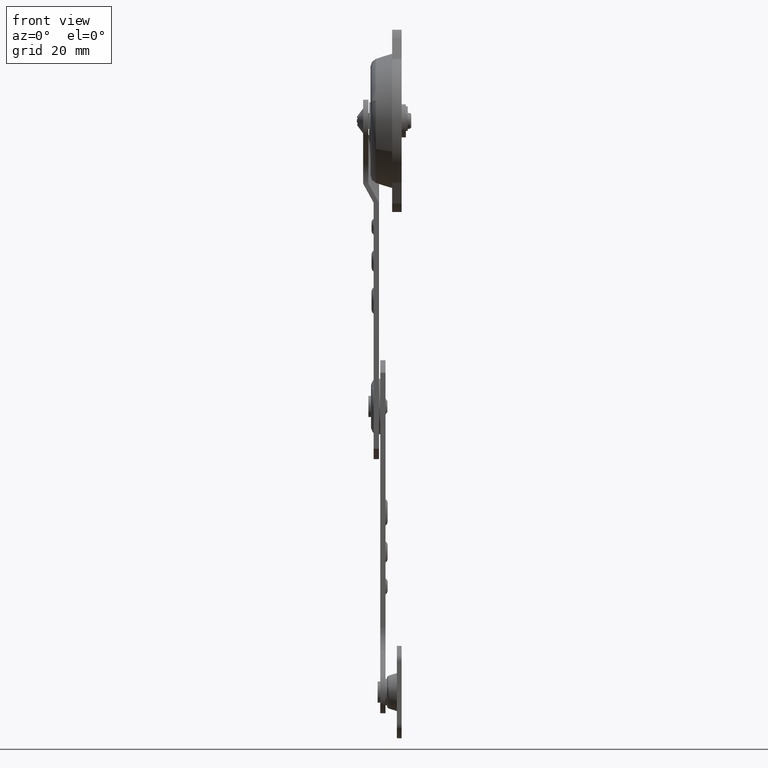
[diagram: clean part render]
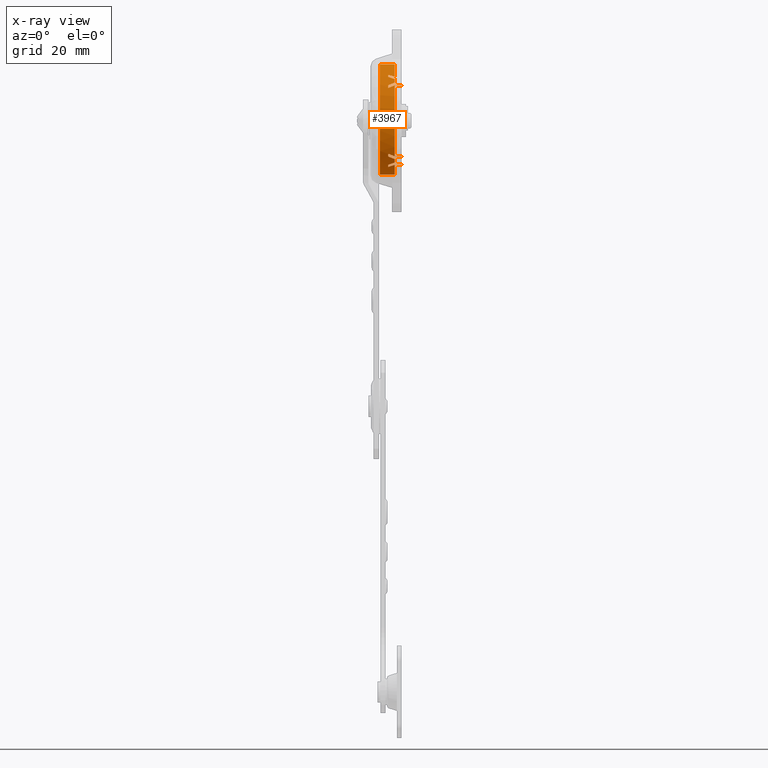
[diagram: x-ray — body ghosted, one internal face saturated and labeled with its STEP entity id]
A machine part, front view, then the same camera in x-ray: the body is ghosted and one INTERNAL B-rep face — a face not visible from any outside direction — is saturated and labeled: STEP entity #3967.
In plain terms, the highlighted face is a freeform B-spline surface patch.
Its self-contained STEP definition (entity closure, byte-faithful):
#3383=CARTESIAN_POINT('',(8.807505125112238,-26.898091209157659,87.742252403829752));
#3384=CARTESIAN_POINT('',(8.807505125112261,-47.155838805327903,94.640343612987408));
#3385=CARTESIAN_POINT('',(8.807505125112330,-40.257747596170248,114.898091209157700));
#3386=CARTESIAN_POINT('',(8.807505125112400,-33.359656387012592,135.155838805327900));
#3387=CARTESIAN_POINT('',(8.807505125112376,-13.101908790842341,128.257747596170300));
#3388=CARTESIAN_POINT('',(0.087312367287628,-26.898091209157659,87.742252403829781));
#3389=CARTESIAN_POINT('',(0.087312367287652,-47.155838805327903,94.640343612987451));
#3390=CARTESIAN_POINT('',(0.087312367287721,-40.257747596170248,114.898091209157700));
#3391=CARTESIAN_POINT('',(0.087312367287791,-33.359656387012592,135.155838805327930));
#3392=CARTESIAN_POINT('',(0.087312367287768,-13.101908790842341,128.257747596170300));
#3400=(BOUNDED_SURFACE()B_SPLINE_SURFACE(2,1,((#3383,#3388),(#3384,#3389),(#3385,#3390),(#3386,#3391),(#3387,#3392)),.UNSPECIFIED.,.F.,.F.,.U.)B_SPLINE_SURFACE_WITH_KNOTS((3,2,3),(2,2),(0.0,35.456680939136923,70.913361878273847),(0.0,8.720192757824611),.UNSPECIFIED.)GEOMETRIC_REPRESENTATION_ITEM()RATIONAL_B_SPLINE_SURFACE(((1.0,1.0),(0.707106781186548,0.707106781186548),(1.0,1.0),(0.707106781186548,0.707106781186548),(1.0,1.0)))REPRESENTATION_ITEM('')SURFACE());
#3401=CARTESIAN_POINT('',(0.299999999160109,-26.898091209278238,87.742252403870822));
#3402=VERTEX_POINT('',#3401);
#3403=CARTESIAN_POINT('',(0.299999995527323,-41.399999999999999,107.999999999999900));
#3404=VERTEX_POINT('',#3403);
#3405=CARTESIAN_POINT('',(0.299999999160109,-26.898091209278256,87.742252403870793));
#3406=CARTESIAN_POINT('',(0.299999997128400,-41.399999999999935,92.680387261773120));
#3407=CARTESIAN_POINT('',(0.299999995527323,-41.399999999999999,107.999999999999890));
#3415=(BOUNDED_CURVE()B_SPLINE_CURVE(2,(#3405,#3406,#3407),.UNSPECIFIED.,.F.,.U.)B_SPLINE_CURVE_WITH_KNOTS((3,3),(0.554786967607398,0.749999999999999),.UNSPECIFIED.)CURVE()GEOMETRIC_REPRESENTATION_ITEM()RATIONAL_B_SPLINE_CURVE((0.899759005586736,0.771293706352785,0.999999999999998))REPRESENTATION_ITEM(''));
#3416=EDGE_CURVE('',#3402,#3404,#3415,.T.);
#3417=ORIENTED_EDGE('',*,*,#3416,.F.);
#3418=CARTESIAN_POINT('',(6.000000000000339,-26.898091412863408,87.742251805513320));
#3419=VERTEX_POINT('',#3418);
#3420=CARTESIAN_POINT('',(6.000000000000339,-26.898091412863408,87.742251805513320));
#3421=CARTESIAN_POINT('',(0.299999999160109,-26.898091209278238,87.742252403870822));
#3422=QUASI_UNIFORM_CURVE('',1,(#3420,#3421),.UNSPECIFIED.,.F.,.U.);
#3423=EDGE_CURVE('',#3419,#3402,#3422,.T.);
#3424=ORIENTED_EDGE('',*,*,#3423,.F.);
#3425=CARTESIAN_POINT('',(6.000000000000340,-33.378870266796497,91.297727861628502));
#3426=VERTEX_POINT('',#3425);
#3427=CARTESIAN_POINT('',(6.000000000000340,-33.378870266796497,91.297727861628502));
#3428=CARTESIAN_POINT('',(6.000000000000340,-30.450199530356656,88.951801726156873));
#3429=CARTESIAN_POINT('',(6.000000000000339,-26.898091412863408,87.742251805513320));
#3437=(BOUNDED_CURVE()B_SPLINE_CURVE(2,(#3427,#3428,#3429),.UNSPECIFIED.,.F.,.U.)B_SPLINE_CURVE_WITH_KNOTS((3,3),(0.0,0.264204997291085),.UNSPECIFIED.)CURVE()GEOMETRIC_REPRESENTATION_ITEM()RATIONAL_B_SPLINE_CURVE((1.0,0.942001706249260,0.914650290585123))REPRESENTATION_ITEM(''));
#3438=EDGE_CURVE('',#3426,#3419,#3437,.T.);
#3439=ORIENTED_EDGE('',*,*,#3438,.F.);
#3440=CARTESIAN_POINT('',(6.990000000000380,-33.378870266796497,91.297727861628402));
#3441=VERTEX_POINT('',#3440);
#3442=CARTESIAN_POINT('',(6.990000000000380,-33.378870266796497,91.297727861628402));
#3443=CARTESIAN_POINT('',(6.000000000000340,-33.378870266796497,91.297727861628502));
#3444=QUASI_UNIFORM_CURVE('',1,(#3442,#3443),.UNSPECIFIED.,.F.,.U.);
#3445=EDGE_CURVE('',#3441,#3426,#3444,.T.);
#3446=ORIENTED_EDGE('',*,*,#3445,.F.);
#3447=CARTESIAN_POINT('',(6.990000000000450,-26.898091450885708,87.742251693852609));
#3448=VERTEX_POINT('',#3447);
#3449=CARTESIAN_POINT('',(6.990000000000380,-33.378870266796497,91.297727861628402));
#3450=CARTESIAN_POINT('',(6.990000000000414,-30.450199543658304,88.951801643436198));
#3451=CARTESIAN_POINT('',(6.990000000000450,-26.898091450885712,87.742251693852609));
#3459=(BOUNDED_CURVE()B_SPLINE_CURVE(2,(#3449,#3450,#3451),.UNSPECIFIED.,.F.,.U.)B_SPLINE_CURVE_WITH_KNOTS((3,3),(0.0,0.264204994545112),.UNSPECIFIED.)CURVE()GEOMETRIC_REPRESENTATION_ITEM()RATIONAL_B_SPLINE_CURVE((1.0,0.942001706852056,0.914650291153669))REPRESENTATION_ITEM(''));
#3460=EDGE_CURVE('',#3441,#3448,#3459,.T.);
#3461=ORIENTED_EDGE('',*,*,#3460,.T.);
#3462=CARTESIAN_POINT('',(7.000000000000400,-26.898091450885708,87.742251693852609));
#3463=VERTEX_POINT('',#3462);
#3464=CARTESIAN_POINT('',(7.000000000000400,-26.898091450885708,87.742251693852609));
#3465=CARTESIAN_POINT('',(6.990000000000450,-26.898091450885708,87.742251693852609));
#3466=QUASI_UNIFORM_CURVE('',1,(#3464,#3465),.UNSPECIFIED.,.F.,.U.);
#3467=EDGE_CURVE('',#3463,#3448,#3466,.T.);
#3468=ORIENTED_EDGE('',*,*,#3467,.F.);
#3469=CARTESIAN_POINT('',(7.000000000000340,-33.378870266796497,91.297727861628402));
#3470=VERTEX_POINT('',#3469);
#3471=CARTESIAN_POINT('',(7.000000000000340,-33.378870266796497,91.297727861628402));
#3472=CARTESIAN_POINT('',(7.000000000000369,-30.450199543658293,88.951801643436198));
#3473=CARTESIAN_POINT('',(7.000000000000400,-26.898091450885712,87.742251693852609));
#3481=(BOUNDED_CURVE()B_SPLINE_CURVE(2,(#3471,#3472,#3473),.UNSPECIFIED.,.F.,.U.)B_SPLINE_CURVE_WITH_KNOTS((3,3),(0.0,0.264204994545113),.UNSPECIFIED.)CURVE()GEOMETRIC_REPRESENTATION_ITEM()RATIONAL_B_SPLINE_CURVE((1.0,0.942001706852056,0.914650291153669))REPRESENTATION_ITEM(''));
#3482=EDGE_CURVE('',#3470,#3463,#3481,.T.);
#3483=ORIENTED_EDGE('',*,*,#3482,.F.);
#3484=CARTESIAN_POINT('',(8.600005000000351,-33.378870266796497,91.297727861628502));
#3485=VERTEX_POINT('',#3484);
#3486=CARTESIAN_POINT('',(8.600005000000351,-33.378870266796497,91.297727861628502));
#3487=CARTESIAN_POINT('',(7.000000000000340,-33.378870266796497,91.297727861628402));
#3488=QUASI_UNIFORM_CURVE('',1,(#3486,#3487),.UNSPECIFIED.,.F.,.U.);
#3489=EDGE_CURVE('',#3485,#3470,#3488,.T.);
#3490=ORIENTED_EDGE('',*,*,#3489,.F.);
#3491=CARTESIAN_POINT('',(8.600005000000351,-33.457224988665153,91.360794495997098));
#3492=VERTEX_POINT('',#3491);
#3493=CARTESIAN_POINT('',(8.600005000000351,-33.457224988665153,91.360794495997098));
#3494=CARTESIAN_POINT('',(8.600005000000421,-33.418121733153718,91.329169109371279));
#3495=CARTESIAN_POINT('',(8.600005000000421,-33.378870266796653,91.297727861628317));
#3503=(BOUNDED_CURVE()B_SPLINE_CURVE(2,(#3493,#3494,#3495),.UNSPECIFIED.,.F.,.U.)CURVE()GEOMETRIC_REPRESENTATION_ITEM()QUASI_UNIFORM_CURVE()RATIONAL_B_SPLINE_CURVE((1.0,0.999997238602891,1.0))REPRESENTATION_ITEM(''));
#3504=EDGE_CURVE('',#3492,#3485,#3503,.T.);
#3505=ORIENTED_EDGE('',*,*,#3504,.F.);
#3506=CARTESIAN_POINT('',(6.000000000000340,-33.457224988665153,91.360794495997098));
#3507=VERTEX_POINT('',#3506);
#3508=CARTESIAN_POINT('',(8.600005000000351,-33.457224988665153,91.360794495997098));
#3509=CARTESIAN_POINT('',(6.000000000000340,-33.457224988665153,91.360794495997098));
#3510=QUASI_UNIFORM_CURVE('',1,(#3508,#3509),.UNSPECIFIED.,.F.,.U.);
#3511=EDGE_CURVE('',#3492,#3507,#3510,.T.);
#3512=ORIENTED_EDGE('',*,*,#3511,.T.);
#3513=CARTESIAN_POINT('',(3.500005000000360,-32.453455009760248,90.596797469434904));
#3514=VERTEX_POINT('',#3513);
#3515=CARTESIAN_POINT('',(6.000000000000340,-33.457224988665153,91.360794495997098));
#3516=CARTESIAN_POINT('',(4.745003381711002,-32.966603520018765,90.963997545748782));
#3517=CARTESIAN_POINT('',(3.500005000000360,-32.453455009760248,90.596797469434904));
#3525=(BOUNDED_CURVE()B_SPLINE_CURVE(2,(#3515,#3516,#3517),.UNSPECIFIED.,.F.,.U.)CURVE()GEOMETRIC_REPRESENTATION_ITEM()QUASI_UNIFORM_CURVE()RATIONAL_B_SPLINE_CURVE((1.0,0.999565577321492,1.0))REPRESENTATION_ITEM(''));
#3526=EDGE_CURVE('',#3507,#3514,#3525,.T.);
#3527=ORIENTED_EDGE('',*,*,#3526,.T.);
#3528=CARTESIAN_POINT('',(3.500005000000360,-33.457225034598551,91.360796462325297));
#3529=VERTEX_POINT('',#3528);
#3530=CARTESIAN_POINT('',(3.500005000000360,-32.453455009760248,90.596797469434904));
#3531=CARTESIAN_POINT('',(3.500005000000426,-32.966603610401428,90.963998448690177));
#3532=CARTESIAN_POINT('',(3.500005000000425,-33.457225034598672,91.360796462325155));
#3540=(BOUNDED_CURVE()B_SPLINE_CURVE(2,(#3530,#3531,#3532),.UNSPECIFIED.,.F.,.U.)CURVE()GEOMETRIC_REPRESENTATION_ITEM()QUASI_UNIFORM_CURVE()RATIONAL_B_SPLINE_CURVE((1.0,0.999565574930626,1.0))REPRESENTATION_ITEM(''));
#3541=EDGE_CURVE('',#3514,#3529,#3540,.T.);
#3542=ORIENTED_EDGE('',*,*,#3541,.T.);
#3543=CARTESIAN_POINT('',(6.000000000000370,-34.446460982802002,92.212037336237088));
#3544=VERTEX_POINT('',#3543);
#3545=CARTESIAN_POINT('',(3.500005000000360,-33.457225034598551,91.360796462325297));
#3546=CARTESIAN_POINT('',(4.747143374169575,-33.964827153965729,91.771327887876780));
#3547=CARTESIAN_POINT('',(6.000000000000370,-34.446460982802002,92.212037336237088));
#3555=(BOUNDED_CURVE()B_SPLINE_CURVE(2,(#3545,#3546,#3547),.UNSPECIFIED.,.F.,.U.)CURVE()GEOMETRIC_REPRESENTATION_ITEM()QUASI_UNIFORM_CURVE()RATIONAL_B_SPLINE_CURVE((1.0,0.999535004457260,1.0))REPRESENTATION_ITEM(''));
#3556=EDGE_CURVE('',#3529,#3544,#3555,.T.);
#3557=ORIENTED_EDGE('',*,*,#3556,.T.);
#3558=CARTESIAN_POINT('',(6.000000000000380,-35.787960904944448,93.553537095055518));
#3559=VERTEX_POINT('',#3558);
#3560=CARTESIAN_POINT('',(6.000000000000380,-35.787960904944448,93.553537095055518));
#3561=CARTESIAN_POINT('',(6.000000000000431,-35.146972081850329,92.853026074045857));
#3562=CARTESIAN_POINT('',(6.000000000000431,-34.446460982802122,92.212037336236946));
#3570=(BOUNDED_CURVE()B_SPLINE_CURVE(2,(#3560,#3561,#3562),.UNSPECIFIED.,.F.,.U.)CURVE()GEOMETRIC_REPRESENTATION_ITEM()QUASI_UNIFORM_CURVE()RATIONAL_B_SPLINE_CURVE((1.0,0.999017104836306,1.0))REPRESENTATION_ITEM(''));
#3571=EDGE_CURVE('',#3559,#3544,#3570,.T.);
#3572=ORIENTED_EDGE('',*,*,#3571,.F.);
#3573=CARTESIAN_POINT('',(3.500005000000370,-36.639204438069847,94.542776077269593));
#3574=VERTEX_POINT('',#3573);
#3575=CARTESIAN_POINT('',(6.000000000000380,-35.787960904944455,93.553537095055518));
#3576=CARTESIAN_POINT('',(4.747143368795997,-36.228671730174845,94.035172403195602));
#3577=CARTESIAN_POINT('',(3.500005000000370,-36.639204438069847,94.542776077269593));
#3585=(BOUNDED_CURVE()B_SPLINE_CURVE(2,(#3575,#3576,#3577),.UNSPECIFIED.,.F.,.U.)B_SPLINE_CURVE_WITH_KNOTS((3,3),(0.000001570053369,1.0),.UNSPECIFIED.)CURVE()GEOMETRIC_REPRESENTATION_ITEM()RATIONAL_B_SPLINE_CURVE((0.999999998539858,0.999535002318497,1.0))REPRESENTATION_ITEM(''));
#3586=EDGE_CURVE('',#3559,#3574,#3585,.T.);
#3587=ORIENTED_EDGE('',*,*,#3586,.T.);
#3588=CARTESIAN_POINT('',(3.500005000000375,-37.403202508667363,95.546544959638410));
#3589=VERTEX_POINT('',#3588);
#3590=CARTESIAN_POINT('',(3.500005000000370,-36.639204438069847,94.542776077269593));
#3591=CARTESIAN_POINT('',(3.500005000000425,-37.036001956124771,95.033396957217803));
#3592=CARTESIAN_POINT('',(3.500005000000425,-37.403202508667484,95.546544959638311));
#3600=(BOUNDED_CURVE()B_SPLINE_CURVE(2,(#3590,#3591,#3592),.UNSPECIFIED.,.F.,.U.)CURVE()GEOMETRIC_REPRESENTATION_ITEM()QUASI_UNIFORM_CURVE()RATIONAL_B_SPLINE_CURVE((1.0,0.999565575941765,1.0))REPRESENTATION_ITEM(''));
#3601=EDGE_CURVE('',#3574,#3589,#3600,.T.);
#3602=ORIENTED_EDGE('',*,*,#3601,.T.);
#3603=CARTESIAN_POINT('',(6.000000000000351,-36.639205504002952,94.542775011334896));
#3604=VERTEX_POINT('',#3603);
#3605=CARTESIAN_POINT('',(3.500005000000375,-37.403202508667363,95.546544959638410));
#3606=CARTESIAN_POINT('',(4.745003381753533,-37.036002443095903,95.033396464773347));
#3607=CARTESIAN_POINT('',(6.000000000000351,-36.639205504002952,94.542775011334896));
#3615=(BOUNDED_CURVE()B_SPLINE_CURVE(2,(#3605,#3606,#3607),.UNSPECIFIED.,.F.,.U.)CURVE()GEOMETRIC_REPRESENTATION_ITEM()QUASI_UNIFORM_CURVE()RATIONAL_B_SPLINE_CURVE((1.0,0.999565577326518,1.0))REPRESENTATION_ITEM(''));
#3616=EDGE_CURVE('',#3589,#3604,#3615,.T.);
#3617=ORIENTED_EDGE('',*,*,#3616,.T.);
#3618=CARTESIAN_POINT('',(8.600005000000371,-36.639205504002952,94.542775011334896));
#3619=VERTEX_POINT('',#3618);
#3620=CARTESIAN_POINT('',(8.600005000000371,-36.639205504002952,94.542775011334896));
#3621=CARTESIAN_POINT('',(6.000000000000351,-36.639205504002952,94.542775011334896));
#3622=QUASI_UNIFORM_CURVE('',1,(#3620,#3621),.UNSPECIFIED.,.F.,.U.);
#3623=EDGE_CURVE('',#3619,#3604,#3622,.T.);
#3624=ORIENTED_EDGE('',*,*,#3623,.F.);
#3625=CARTESIAN_POINT('',(8.600005000000371,-36.702272138371562,94.621129733203503));
#3626=VERTEX_POINT('',#3625);
#3627=CARTESIAN_POINT('',(8.600005000000421,-36.702272138371697,94.621129733203389));
#3628=CARTESIAN_POINT('',(8.600005000000421,-36.670830890628508,94.581878266846019));
#3629=CARTESIAN_POINT('',(8.600005000000421,-36.639205504003087,94.542775011334783));
#3637=(BOUNDED_CURVE()B_SPLINE_CURVE(2,(#3627,#3628,#3629),.UNSPECIFIED.,.F.,.U.)CURVE()GEOMETRIC_REPRESENTATION_ITEM()QUASI_UNIFORM_CURVE()RATIONAL_B_SPLINE_CURVE((1.0,0.999997238602891,1.0))REPRESENTATION_ITEM(''));
#3638=EDGE_CURVE('',#3626,#3619,#3637,.T.);
#3639=ORIENTED_EDGE('',*,*,#3638,.F.);
#3640=CARTESIAN_POINT('',(7.000000000000351,-36.702272138371598,94.621129733203503));
#3641=VERTEX_POINT('',#3640);
#3642=CARTESIAN_POINT('',(8.600005000000371,-36.702272138371562,94.621129733203503));
#3643=CARTESIAN_POINT('',(7.000000000000351,-36.702272138371598,94.621129733203503));
#3644=QUASI_UNIFORM_CURVE('',1,(#3642,#3643),.UNSPECIFIED.,.F.,.U.);
#3645=EDGE_CURVE('',#3626,#3641,#3644,.T.);
#3646=ORIENTED_EDGE('',*,*,#3645,.T.);
#3647=CARTESIAN_POINT('',(7.000000000000450,-36.702272138371598,121.378870266796800));
#3648=VERTEX_POINT('',#3647);
#3649=CARTESIAN_POINT('',(7.000000000000400,-36.702272138371569,121.378870266796800));
#3650=CARTESIAN_POINT('',(7.000000000000400,-47.419027806874823,108.000000000000160));
#3651=CARTESIAN_POINT('',(7.000000000000400,-36.702272138371711,94.621129733203389));
#3659=(BOUNDED_CURVE()B_SPLINE_CURVE(2,(#3649,#3650,#3651),.UNSPECIFIED.,.F.,.U.)CURVE()GEOMETRIC_REPRESENTATION_ITEM()QUASI_UNIFORM_CURVE()RATIONAL_B_SPLINE_CURVE((1.0,0.780479951759426,1.0))REPRESENTATION_ITEM(''));
#3660=EDGE_CURVE('',#3648,#3641,#3659,.T.);
#3661=ORIENTED_EDGE('',*,*,#3660,.F.);
#3662=CARTESIAN_POINT('',(8.600005000000461,-36.702272138371598,121.378870266796800));
#3663=VERTEX_POINT('',#3662);
#3664=CARTESIAN_POINT('',(8.600005000000461,-36.702272138371598,121.378870266796800));
#3665=CARTESIAN_POINT('',(7.000000000000450,-36.702272138371598,121.378870266796800));
#3666=QUASI_UNIFORM_CURVE('',1,(#3664,#3665),.UNSPECIFIED.,.F.,.U.);
#3667=EDGE_CURVE('',#3663,#3648,#3666,.T.);
#3668=ORIENTED_EDGE('',*,*,#3667,.F.);
#3669=CARTESIAN_POINT('',(8.600005000000461,-36.639205504002952,121.457224988665400));
#3670=VERTEX_POINT('',#3669);
#3671=CARTESIAN_POINT('',(8.600005000000421,-36.639205504002952,121.457224988665400));
#3672=CARTESIAN_POINT('',(8.600005000000421,-36.670830890628721,121.418121733153730));
#3673=CARTESIAN_POINT('',(8.600005000000421,-36.702272138371569,121.378870266796800));
#3681=(BOUNDED_CURVE()B_SPLINE_CURVE(2,(#3671,#3672,#3673),.UNSPECIFIED.,.F.,.U.)CURVE()GEOMETRIC_REPRESENTATION_ITEM()QUASI_UNIFORM_CURVE()RATIONAL_B_SPLINE_CURVE((1.0,0.999997238602891,1.0))REPRESENTATION_ITEM(''));
#3682=EDGE_CURVE('',#3670,#3663,#3681,.T.);
#3683=ORIENTED_EDGE('',*,*,#3682,.F.);
#3684=CARTESIAN_POINT('',(6.000000000000450,-36.639205504002952,121.457224988665400));
#3685=VERTEX_POINT('',#3684);
#3686=CARTESIAN_POINT('',(8.600005000000461,-36.639205504002952,121.457224988665400));
#3687=CARTESIAN_POINT('',(6.000000000000450,-36.639205504002952,121.457224988665400));
#3688=QUASI_UNIFORM_CURVE('',1,(#3686,#3687),.UNSPECIFIED.,.F.,.U.);
#3689=EDGE_CURVE('',#3670,#3685,#3688,.T.);
#3690=ORIENTED_EDGE('',*,*,#3689,.T.);
#3691=CARTESIAN_POINT('',(3.500005000000465,-37.403202508667363,120.453455040362000));
#3692=VERTEX_POINT('',#3691);
#3693=CARTESIAN_POINT('',(3.500005000000465,-37.403202508667363,120.453455040362000));
#3694=CARTESIAN_POINT('',(4.745003381753613,-37.036002443095903,120.966603535227010));
#3695=CARTESIAN_POINT('',(6.000000000000450,-36.639205504002952,121.457224988665400));
#3703=(BOUNDED_CURVE()B_SPLINE_CURVE(2,(#3693,#3694,#3695),.UNSPECIFIED.,.F.,.U.)CURVE()GEOMETRIC_REPRESENTATION_ITEM()QUASI_UNIFORM_CURVE()RATIONAL_B_SPLINE_CURVE((1.0,0.999565577327142,1.0))REPRESENTATION_ITEM(''));
#3704=EDGE_CURVE('',#3692,#3685,#3703,.T.);
#3705=ORIENTED_EDGE('',*,*,#3704,.F.);
#3706=CARTESIAN_POINT('',(3.500005000000470,-36.639203532403450,121.457225040113000));
#3707=VERTEX_POINT('',#3706);
#3708=CARTESIAN_POINT('',(3.500005000000470,-36.639203532403450,121.457225040113000));
#3709=CARTESIAN_POINT('',(3.500005000000426,-37.036001537254016,120.966603628137210));
#3710=CARTESIAN_POINT('',(3.500005000000425,-37.403202508667292,120.453455040362000));
#3718=(BOUNDED_CURVE()B_SPLINE_CURVE(2,(#3708,#3709,#3710),.UNSPECIFIED.,.F.,.U.)CURVE()GEOMETRIC_REPRESENTATION_ITEM()QUASI_UNIFORM_CURVE()RATIONAL_B_SPLINE_CURVE((1.0,0.999565574951303,1.0))REPRESENTATION_ITEM(''));
#3719=EDGE_CURVE('',#3707,#3692,#3718,.T.);
#3720=ORIENTED_EDGE('',*,*,#3719,.F.);
#3721=CARTESIAN_POINT('',(6.000000000000490,-35.787960904944448,122.446462904944800));
#3722=VERTEX_POINT('',#3721);
#3723=CARTESIAN_POINT('',(6.000000000000490,-35.787960904944441,122.446462904944770));
#3724=CARTESIAN_POINT('',(4.747143373194639,-36.228671243975214,121.964828127674820));
#3725=CARTESIAN_POINT('',(3.500005000000470,-36.639203532403450,121.457225040113000));
#3733=(BOUNDED_CURVE()B_SPLINE_CURVE(2,(#3723,#3724,#3725),.UNSPECIFIED.,.F.,.U.)B_SPLINE_CURVE_WITH_KNOTS((3,3),(0.000001570057655,1.0),.UNSPECIFIED.)CURVE()GEOMETRIC_REPRESENTATION_ITEM()RATIONAL_B_SPLINE_CURVE((0.999999998539857,0.999535003332860,1.0))REPRESENTATION_ITEM(''));
#3734=EDGE_CURVE('',#3722,#3707,#3733,.T.);
#3735=ORIENTED_EDGE('',*,*,#3734,.F.);
#3736=CARTESIAN_POINT('',(6.000000000000490,-34.446460982799763,123.787962663765000));
#3737=VERTEX_POINT('',#3736);
#3738=CARTESIAN_POINT('',(6.000000000000431,-34.446460982799863,123.787962663765100));
#3739=CARTESIAN_POINT('',(6.000000000000431,-35.146972081849199,123.146973925955340));
#3740=CARTESIAN_POINT('',(6.000000000000431,-35.787960904944441,122.446462904944800));
#3748=(BOUNDED_CURVE()B_SPLINE_CURVE(2,(#3738,#3739,#3740),.UNSPECIFIED.,.F.,.U.)CURVE()GEOMETRIC_REPRESENTATION_ITEM()QUASI_UNIFORM_CURVE()RATIONAL_B_SPLINE_CURVE((1.0,0.999017104836303,1.0))REPRESENTATION_ITEM(''));
#3749=EDGE_CURVE('',#3737,#3722,#3748,.T.);
#3750=ORIENTED_EDGE('',*,*,#3749,.F.);
#3751=CARTESIAN_POINT('',(3.500005000000485,-33.457223930573150,124.639204430573400));
#3752=VERTEX_POINT('',#3751);
#3753=CARTESIAN_POINT('',(3.500005000000485,-33.457223930573150,124.639204430573400));
#3754=CARTESIAN_POINT('',(4.747143369786981,-33.964826629705264,124.228672591837300));
#3755=CARTESIAN_POINT('',(6.000000000000490,-34.446460982799763,123.787962663765000));
#3763=(BOUNDED_CURVE()B_SPLINE_CURVE(2,(#3753,#3754,#3755),.UNSPECIFIED.,.F.,.U.)CURVE()GEOMETRIC_REPRESENTATION_ITEM()QUASI_UNIFORM_CURVE()RATIONAL_B_SPLINE_CURVE((1.0,0.999535003446286,1.0))REPRESENTATION_ITEM(''));
#3764=EDGE_CURVE('',#3752,#3737,#3763,.T.);
#3765=ORIENTED_EDGE('',*,*,#3764,.F.);
#3766=CARTESIAN_POINT('',(3.500005000000485,-32.453455040361654,125.403202508667800));
#3767=VERTEX_POINT('',#3766);
#3768=CARTESIAN_POINT('',(3.500005000000425,-32.453455040361511,125.403202508667600));
#3769=CARTESIAN_POINT('',(3.500005000000425,-32.966603047182232,125.036001952976190));
#3770=CARTESIAN_POINT('',(3.500005000000425,-33.457223930573079,124.639204430573300));
#3778=(BOUNDED_CURVE()B_SPLINE_CURVE(2,(#3768,#3769,#3770),.UNSPECIFIED.,.F.,.U.)CURVE()GEOMETRIC_REPRESENTATION_ITEM()QUASI_UNIFORM_CURVE()RATIONAL_B_SPLINE_CURVE((1.0,0.999565575934319,1.0))REPRESENTATION_ITEM(''));
#3779=EDGE_CURVE('',#3767,#3752,#3778,.T.);
#3780=ORIENTED_EDGE('',*,*,#3779,.F.);
#3781=CARTESIAN_POINT('',(6.000000000000460,-33.457224988665153,124.639205504003200));
#3782=VERTEX_POINT('',#3781);
#3783=CARTESIAN_POINT('',(6.000000000000460,-33.457224988665153,124.639205504003200));
#3784=CARTESIAN_POINT('',(4.745003381753685,-32.966603535226717,125.036002443096150));
#3785=CARTESIAN_POINT('',(3.500005000000485,-32.453455040361654,125.403202508667800));
#3793=(BOUNDED_CURVE()B_SPLINE_CURVE(2,(#3783,#3784,#3785),.UNSPECIFIED.,.F.,.U.)CURVE()GEOMETRIC_REPRESENTATION_ITEM()QUASI_UNIFORM_CURVE()RATIONAL_B_SPLINE_CURVE((1.0,0.999565577327290,1.0))REPRESENTATION_ITEM(''));
#3794=EDGE_CURVE('',#3782,#3767,#3793,.T.);
#3795=ORIENTED_EDGE('',*,*,#3794,.F.);
#3796=CARTESIAN_POINT('',(8.600005000000481,-33.457224988665153,124.639205504003200));
#3797=VERTEX_POINT('',#3796);
#3798=CARTESIAN_POINT('',(8.600005000000481,-33.457224988665153,124.639205504003200));
#3799=CARTESIAN_POINT('',(6.000000000000460,-33.457224988665153,124.639205504003200));
#3800=QUASI_UNIFORM_CURVE('',1,(#3798,#3799),.UNSPECIFIED.,.F.,.U.);
#3801=EDGE_CURVE('',#3797,#3782,#3800,.T.);
#3802=ORIENTED_EDGE('',*,*,#3801,.F.);
#3803=CARTESIAN_POINT('',(8.600005000000481,-33.378870266796497,124.702272138372000));
#3804=VERTEX_POINT('',#3803);
#3805=CARTESIAN_POINT('',(8.600005000000421,-33.378870266796412,124.702272138371900));
#3806=CARTESIAN_POINT('',(8.600005000000421,-33.418121733153662,124.670830890628760));
#3807=CARTESIAN_POINT('',(8.600005000000421,-33.457224988665132,124.639205504003200));
#3815=(BOUNDED_CURVE()B_SPLINE_CURVE(2,(#3805,#3806,#3807),.UNSPECIFIED.,.F.,.U.)CURVE()GEOMETRIC_REPRESENTATION_ITEM()QUASI_UNIFORM_CURVE()RATIONAL_B_SPLINE_CURVE((1.0,0.999997238602891,1.0))REPRESENTATION_ITEM(''));
#3816=EDGE_CURVE('',#3804,#3797,#3815,.T.);
#3817=ORIENTED_EDGE('',*,*,#3816,.F.);
#3818=CARTESIAN_POINT('',(7.000000000000460,-33.378870266796497,124.702272138372000));
#3819=VERTEX_POINT('',#3818);
#3820=CARTESIAN_POINT('',(8.600005000000481,-33.378870266796497,124.702272138372000));
#3821=CARTESIAN_POINT('',(7.000000000000460,-33.378870266796497,124.702272138372000));
#3822=QUASI_UNIFORM_CURVE('',1,(#3820,#3821),.UNSPECIFIED.,.F.,.U.);
#3823=EDGE_CURVE('',#3804,#3819,#3822,.T.);
#3824=ORIENTED_EDGE('',*,*,#3823,.T.);
#3825=CARTESIAN_POINT('',(7.000000000000441,-13.101908549114270,128.257748306147500));
#3826=VERTEX_POINT('',#3825);
#3827=CARTESIAN_POINT('',(7.000000000000441,-13.101908549114267,128.257748306147480));
#3828=CARTESIAN_POINT('',(7.000000000000431,-24.215690113227211,132.042171355581530));
#3829=CARTESIAN_POINT('',(7.000000000000460,-33.378870266796497,124.702272138372000));
#3837=(BOUNDED_CURVE()B_SPLINE_CURVE(2,(#3827,#3828,#3829),.UNSPECIFIED.,.F.,.U.)B_SPLINE_CURVE_WITH_KNOTS((3,3),(0.264204994545117,1.0),.UNSPECIFIED.)CURVE()GEOMETRIC_REPRESENTATION_ITEM()RATIONAL_B_SPLINE_CURVE((0.914650291153671,0.838478244907377,1.0))REPRESENTATION_ITEM(''));
#3838=EDGE_CURVE('',#3826,#3819,#3837,.T.);
#3839=ORIENTED_EDGE('',*,*,#3838,.F.);
#3840=CARTESIAN_POINT('',(6.990000000000485,-13.101908549114270,128.257748306147500));
#3841=VERTEX_POINT('',#3840);
#3842=CARTESIAN_POINT('',(7.000000000000441,-13.101908549114270,128.257748306147500));
#3843=CARTESIAN_POINT('',(6.990000000000485,-13.101908549114270,128.257748306147500));
#3844=QUASI_UNIFORM_CURVE('',1,(#3842,#3843),.UNSPECIFIED.,.F.,.U.);
#3845=EDGE_CURVE('',#3826,#3841,#3844,.T.);
#3846=ORIENTED_EDGE('',*,*,#3845,.T.);
#3847=CARTESIAN_POINT('',(6.990000000000510,-33.378870266796497,124.702272138372000));
#3848=VERTEX_POINT('',#3847);
#3849=CARTESIAN_POINT('',(6.990000000000485,-13.101908549114267,128.257748306147480));
#3850=CARTESIAN_POINT('',(6.990000000000480,-24.215690113227211,132.042171355581530));
#3851=CARTESIAN_POINT('',(6.990000000000510,-33.378870266796497,124.702272138372000));
#3859=(BOUNDED_CURVE()B_SPLINE_CURVE(2,(#3849,#3850,#3851),.UNSPECIFIED.,.F.,.U.)B_SPLINE_CURVE_WITH_KNOTS((3,3),(0.264204994545117,1.0),.UNSPECIFIED.)CURVE()GEOMETRIC_REPRESENTATION_ITEM()RATIONAL_B_SPLINE_CURVE((0.914650291153671,0.838478244907377,1.0))REPRESENTATION_ITEM(''));
#3860=EDGE_CURVE('',#3841,#3848,#3859,.T.);
#3861=ORIENTED_EDGE('',*,*,#3860,.T.);
#3862=CARTESIAN_POINT('',(6.000000000000460,-33.378870266796497,124.702272138372000));
#3863=VERTEX_POINT('',#3862);
#3864=CARTESIAN_POINT('',(6.990000000000510,-33.378870266796497,124.702272138372000));
#3865=CARTESIAN_POINT('',(6.000000000000460,-33.378870266796497,124.702272138372000));
#3866=QUASI_UNIFORM_CURVE('',1,(#3864,#3865),.UNSPECIFIED.,.F.,.U.);
#3867=EDGE_CURVE('',#3848,#3863,#3866,.T.);
#3868=ORIENTED_EDGE('',*,*,#3867,.T.);
#3869=CARTESIAN_POINT('',(6.000000000000467,-13.101908587136530,128.257748194486910));
#3870=VERTEX_POINT('',#3869);
#3871=CARTESIAN_POINT('',(6.000000000000467,-13.101908587136530,128.257748194486880));
#3872=CARTESIAN_POINT('',(6.000000000000464,-24.215690135000408,132.042170864263850));
#3873=CARTESIAN_POINT('',(6.000000000000460,-33.378870266796497,124.702272138372000));
#3881=(BOUNDED_CURVE()B_SPLINE_CURVE(2,(#3871,#3872,#3873),.UNSPECIFIED.,.F.,.U.)B_SPLINE_CURVE_WITH_KNOTS((3,3),(0.264204997291089,1.0),.UNSPECIFIED.)CURVE()GEOMETRIC_REPRESENTATION_ITEM()RATIONAL_B_SPLINE_CURVE((0.914650290585126,0.838478245510173,1.0))REPRESENTATION_ITEM(''));
#3882=EDGE_CURVE('',#3870,#3863,#3881,.T.);
#3883=ORIENTED_EDGE('',*,*,#3882,.F.);
#3884=CARTESIAN_POINT('',(0.299999999160109,-13.101908790721771,128.257747596129210));
#3885=VERTEX_POINT('',#3884);
#3886=CARTESIAN_POINT('',(6.000000000000467,-13.101908587136530,128.257748194486910));
#3887=CARTESIAN_POINT('',(0.299999999160109,-13.101908790721771,128.257747596129210));
#3888=QUASI_UNIFORM_CURVE('',1,(#3886,#3887),.UNSPECIFIED.,.F.,.U.);
#3889=EDGE_CURVE('',#3870,#3885,#3888,.T.);
#3890=ORIENTED_EDGE('',*,*,#3889,.T.);
#3891=CARTESIAN_POINT('',(0.300000000000417,-20.0,129.400000000000010));
#3892=VERTEX_POINT('',#3891);
#3893=CARTESIAN_POINT('',(0.300000000000417,-20.0,129.400000000000010));
#3894=CARTESIAN_POINT('',(0.299999999630069,-16.456381816181761,129.399999999999980));
#3895=CARTESIAN_POINT('',(0.299999999160109,-13.101908790721778,128.257747596129240));
#3903=(BOUNDED_CURVE()B_SPLINE_CURVE(2,(#3893,#3894,#3895),.UNSPECIFIED.,.F.,.U.)B_SPLINE_CURVE_WITH_KNOTS((3,3),(0.0,0.054786967607398),.UNSPECIFIED.)CURVE()GEOMETRIC_REPRESENTATION_ITEM()RATIONAL_B_SPLINE_CURVE((1.0,0.935813074833764,0.899759005586736))REPRESENTATION_ITEM(''));
#3904=EDGE_CURVE('',#3892,#3885,#3903,.T.);
#3905=ORIENTED_EDGE('',*,*,#3904,.F.);
#3906=CARTESIAN_POINT('',(0.299999995527323,-41.399999999999984,107.999999999999890));
#3907=CARTESIAN_POINT('',(0.299999997763870,-41.400000000000091,129.399999999999980));
#3908=CARTESIAN_POINT('',(0.300000000000417,-20.0,129.400000000000010));
#3916=(BOUNDED_CURVE()B_SPLINE_CURVE(2,(#3906,#3907,#3908),.UNSPECIFIED.,.F.,.U.)B_SPLINE_CURVE_WITH_KNOTS((3,3),(0.749999999999999,1.0),.UNSPECIFIED.)CURVE()GEOMETRIC_REPRESENTATION_ITEM()RATIONAL_B_SPLINE_CURVE((1.000000000000002,0.707106781186547,1.0))REPRESENTATION_ITEM(''));
#3917=EDGE_CURVE('',#3404,#3892,#3916,.T.);
#3918=ORIENTED_EDGE('',*,*,#3917,.F.);
#3919=EDGE_LOOP('',(#3417,#3424,#3439,#3446,#3461,#3468,#3483,#3490,#3505,#3512,#3527,#3542,#3557,#3572,#3587,#3602,#3617,#3624,#3639,#3646,#3661,#3668,#3683,#3690,#3705,#3720,#3735,#3750,#3765,#3780,#3795,#3802,#3817,#3824,#3839,#3846,#3861,#3868,#3883,#3890,#3905,#3918));
#3920=FACE_OUTER_BOUND('',#3919,.T.);
#3921=CARTESIAN_POINT('',(6.000000000000450,-36.702272138371598,121.378870266796800));
#3922=VERTEX_POINT('',#3921);
#3923=CARTESIAN_POINT('',(6.000000000000351,-36.702272138371562,94.621129733203503));
#3924=VERTEX_POINT('',#3923);
#3925=CARTESIAN_POINT('',(6.000000000000450,-36.702272138371598,121.378870266796800));
#3926=CARTESIAN_POINT('',(6.000000000000401,-47.419027055700361,108.000000000000210));
#3927=CARTESIAN_POINT('',(6.000000000000351,-36.702272138371562,94.621129733203503));
#3935=(BOUNDED_CURVE()B_SPLINE_CURVE(2,(#3925,#3926,#3927),.UNSPECIFIED.,.F.,.U.)CURVE()GEOMETRIC_REPRESENTATION_ITEM()QUASI_UNIFORM_CURVE()RATIONAL_B_SPLINE_CURVE((1.0,0.780479951759426,1.0))REPRESENTATION_ITEM(''));
#3936=EDGE_CURVE('',#3922,#3924,#3935,.T.);
#3937=ORIENTED_EDGE('',*,*,#3936,.F.);
#3938=CARTESIAN_POINT('',(6.990000000000499,-36.702272138371598,121.378870266796800));
#3939=VERTEX_POINT('',#3938);
#3940=CARTESIAN_POINT('',(6.990000000000499,-36.702272138371598,121.378870266796800));
#3941=CARTESIAN_POINT('',(6.000000000000450,-36.702272138371598,121.378870266796800));
#3942=QUASI_UNIFORM_CURVE('',1,(#3940,#3941),.UNSPECIFIED.,.F.,.U.);
#3943=EDGE_CURVE('',#3939,#3922,#3942,.T.);
#3944=ORIENTED_EDGE('',*,*,#3943,.F.);
#3945=CARTESIAN_POINT('',(6.990000000000400,-36.702272138371598,94.621129733203503));
#3946=VERTEX_POINT('',#3945);
#3947=CARTESIAN_POINT('',(6.990000000000450,-36.702272138371569,121.378870266796800));
#3948=CARTESIAN_POINT('',(6.990000000000449,-47.419027806874823,108.000000000000160));
#3949=CARTESIAN_POINT('',(6.990000000000450,-36.702272138371711,94.621129733203389));
#3957=(BOUNDED_CURVE()B_SPLINE_CURVE(2,(#3947,#3948,#3949),.UNSPECIFIED.,.F.,.U.)CURVE()GEOMETRIC_REPRESENTATION_ITEM()QUASI_UNIFORM_CURVE()RATIONAL_B_SPLINE_CURVE((1.0,0.780479951759426,1.0))REPRESENTATION_ITEM(''));
#3958=EDGE_CURVE('',#3939,#3946,#3957,.T.);
#3959=ORIENTED_EDGE('',*,*,#3958,.T.);
#3960=CARTESIAN_POINT('',(6.990000000000400,-36.702272138371598,94.621129733203503));
#3961=CARTESIAN_POINT('',(6.000000000000351,-36.702272138371562,94.621129733203503));
#3962=QUASI_UNIFORM_CURVE('',1,(#3960,#3961),.UNSPECIFIED.,.F.,.U.);
#3963=EDGE_CURVE('',#3946,#3924,#3962,.T.);
#3964=ORIENTED_EDGE('',*,*,#3963,.T.);
#3965=EDGE_LOOP('',(#3937,#3944,#3959,#3964));
#3966=FACE_BOUND('',#3965,.T.);
#3967=ADVANCED_FACE('',(#3920,#3966),#3400,.T.);